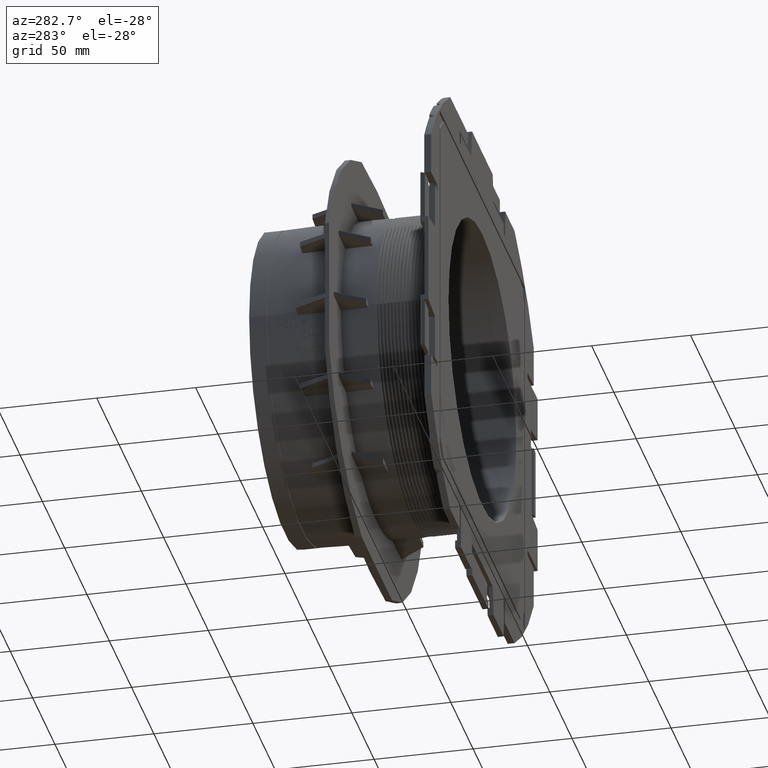
[diagram: clean part render]
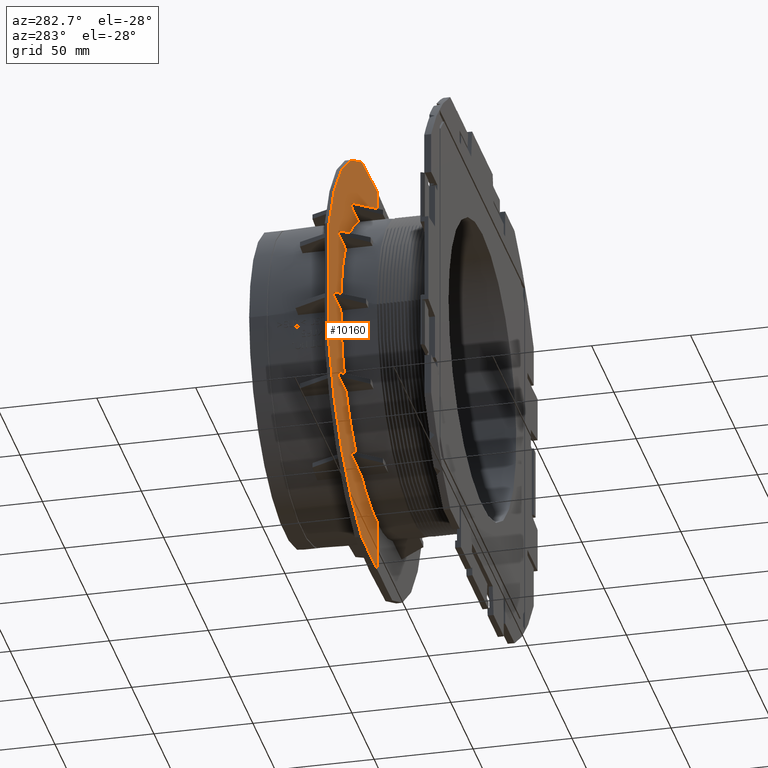
[diagram: same view with one face highlighted and labeled with its STEP entity id]
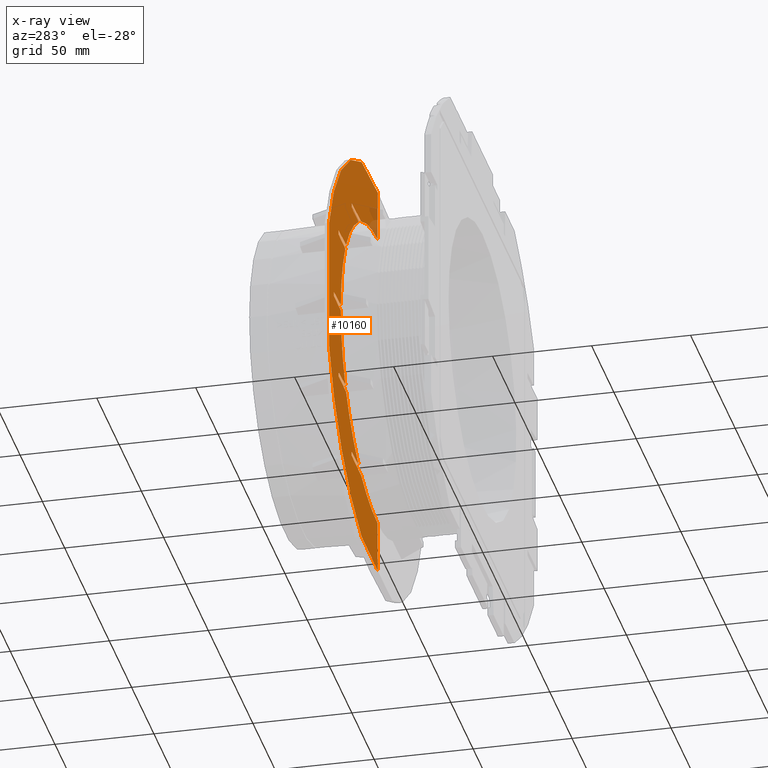
[diagram: x-ray of the same camera — body ghosted, the highlighted face saturated]
A machine part, auxiliary view. The second image highlights one B-rep face of the part: STEP entity #10160.
The next image is the same camera in x-ray: the body ghosted, the highlighted face saturated — about 2% of this face is hidden behind the body in this view.
In plain terms, the highlighted planar face has unit normal (-0.0087, -1, 0).
Its self-contained STEP definition (entity closure, byte-faithful):
#415=ELLIPSE('',#10895,110.004188622431,110.);
#416=ELLIPSE('',#10896,110.004188622431,110.);
#417=ELLIPSE('',#10897,79.1530139042311,79.15);
#418=ELLIPSE('',#10898,79.1530139042311,79.15);
#419=ELLIPSE('',#10899,79.1530139042311,79.15);
#420=ELLIPSE('',#10900,79.1530139042311,79.15);
#421=ELLIPSE('',#10901,79.1530139042311,79.15);
#422=ELLIPSE('',#10902,79.1530139042311,79.15);
#730=FACE_OUTER_BOUND('',#1290,.T.);
#1290=EDGE_LOOP('',(#6786,#6787,#6788,#6789,#6790,#6791,#6792,#6793,#6794,
#6795,#6796,#6797,#6798,#6799,#6800,#6801,#6802,#6803,#6804,#6805,#6806,
#6807,#6808,#6809,#6810,#6811,#6812,#6813));
#1982=LINE('',#16957,#2977);
#1986=LINE('',#16969,#2981);
#1999=LINE('',#17001,#2994);
#2003=LINE('',#17013,#2998);
#2008=LINE('',#17022,#3003);
#2009=LINE('',#17028,#3004);
#2010=LINE('',#17031,#3005);
#2011=LINE('',#17035,#3006);
#2012=LINE('',#17037,#3007);
#2013=LINE('',#17039,#3008);
#2014=LINE('',#17043,#3009);
#2015=LINE('',#17045,#3010);
#2016=LINE('',#17047,#3011);
#2017=LINE('',#17051,#3012);
#2018=LINE('',#17053,#3013);
#2019=LINE('',#17055,#3014);
#2020=LINE('',#17058,#3015);
#2021=LINE('',#17061,#3016);
#2022=LINE('',#17063,#3017);
#2023=LINE('',#17065,#3018);
#2977=VECTOR('',#12006,10.);
#2981=VECTOR('',#12014,10.);
#2994=VECTOR('',#12037,10.);
#2998=VECTOR('',#12047,10.);
#3003=VECTOR('',#12054,10.);
#3004=VECTOR('',#12059,10.);
#3005=VECTOR('',#12062,10.);
#3006=VECTOR('',#12065,10.);
#3007=VECTOR('',#12066,10.);
#3008=VECTOR('',#12067,10.);
#3009=VECTOR('',#12070,10.);
#3010=VECTOR('',#12071,10.);
#3011=VECTOR('',#12072,10.);
#3012=VECTOR('',#12075,10.);
#3013=VECTOR('',#12076,10.);
#3014=VECTOR('',#12077,10.);
#3015=VECTOR('',#12080,10.);
#3016=VECTOR('',#12083,10.);
#3017=VECTOR('',#12084,10.);
#3018=VECTOR('',#12087,10.);
#4231=VERTEX_POINT('',#16954);
#4232=VERTEX_POINT('',#16956);
#4237=VERTEX_POINT('',#16966);
#4238=VERTEX_POINT('',#16968);
#4250=VERTEX_POINT('',#16995);
#4252=VERTEX_POINT('',#16999);
#4256=VERTEX_POINT('',#17010);
#4257=VERTEX_POINT('',#17012);
#4260=VERTEX_POINT('',#17020);
#4261=VERTEX_POINT('',#17024);
#4262=VERTEX_POINT('',#17025);
#4263=VERTEX_POINT('',#17027);
#4264=VERTEX_POINT('',#17029);
#4265=VERTEX_POINT('',#17032);
#4266=VERTEX_POINT('',#17034);
#4267=VERTEX_POINT('',#17036);
#4268=VERTEX_POINT('',#17038);
#4269=VERTEX_POINT('',#17040);
#4270=VERTEX_POINT('',#17042);
#4271=VERTEX_POINT('',#17044);
#4272=VERTEX_POINT('',#17046);
#4273=VERTEX_POINT('',#17048);
#4274=VERTEX_POINT('',#17050);
#4275=VERTEX_POINT('',#17052);
#4276=VERTEX_POINT('',#17054);
#4277=VERTEX_POINT('',#17056);
#4278=VERTEX_POINT('',#17059);
#4279=VERTEX_POINT('',#17062);
#5226=EDGE_CURVE('',#4231,#4232,#1982,.T.);
#5232=EDGE_CURVE('',#4237,#4238,#1986,.T.);
#5248=EDGE_CURVE('',#4252,#4250,#1999,.T.);
#5253=EDGE_CURVE('',#4257,#4256,#2003,.T.);
#5258=EDGE_CURVE('',#4256,#4260,#2008,.T.);
#5259=EDGE_CURVE('',#4261,#4262,#415,.T.);
#5260=EDGE_CURVE('',#4262,#4263,#2009,.T.);
#5261=EDGE_CURVE('',#4263,#4264,#416,.T.);
#5262=EDGE_CURVE('',#4264,#4232,#2010,.T.);
#5263=EDGE_CURVE('',#4231,#4265,#417,.T.);
#5264=EDGE_CURVE('',#4265,#4266,#2011,.T.);
#5265=EDGE_CURVE('',#4267,#4266,#2012,.T.);
#5266=EDGE_CURVE('',#4267,#4268,#2013,.T.);
#5267=EDGE_CURVE('',#4268,#4269,#418,.T.);
#5268=EDGE_CURVE('',#4269,#4270,#2014,.T.);
#5269=EDGE_CURVE('',#4271,#4270,#2015,.T.);
#5270=EDGE_CURVE('',#4271,#4272,#2016,.T.);
#5271=EDGE_CURVE('',#4272,#4273,#419,.T.);
#5272=EDGE_CURVE('',#4273,#4274,#2017,.T.);
#5273=EDGE_CURVE('',#4275,#4274,#2018,.T.);
#5274=EDGE_CURVE('',#4275,#4276,#2019,.T.);
#5275=EDGE_CURVE('',#4276,#4277,#420,.T.);
#5276=EDGE_CURVE('',#4277,#4257,#2020,.T.);
#5277=EDGE_CURVE('',#4260,#4278,#421,.T.);
#5278=EDGE_CURVE('',#4278,#4250,#2021,.T.);
#5279=EDGE_CURVE('',#4252,#4279,#2022,.T.);
#5280=EDGE_CURVE('',#4279,#4238,#422,.T.);
#5281=EDGE_CURVE('',#4237,#4261,#2023,.T.);
#6786=ORIENTED_EDGE('',*,*,#5259,.T.);
#6787=ORIENTED_EDGE('',*,*,#5260,.T.);
#6788=ORIENTED_EDGE('',*,*,#5261,.T.);
#6789=ORIENTED_EDGE('',*,*,#5262,.T.);
#6790=ORIENTED_EDGE('',*,*,#5226,.F.);
#6791=ORIENTED_EDGE('',*,*,#5263,.T.);
#6792=ORIENTED_EDGE('',*,*,#5264,.T.);
#6793=ORIENTED_EDGE('',*,*,#5265,.F.);
#6794=ORIENTED_EDGE('',*,*,#5266,.T.);
#6795=ORIENTED_EDGE('',*,*,#5267,.T.);
#6796=ORIENTED_EDGE('',*,*,#5268,.T.);
#6797=ORIENTED_EDGE('',*,*,#5269,.F.);
#6798=ORIENTED_EDGE('',*,*,#5270,.T.);
#6799=ORIENTED_EDGE('',*,*,#5271,.T.);
#6800=ORIENTED_EDGE('',*,*,#5272,.T.);
#6801=ORIENTED_EDGE('',*,*,#5273,.F.);
#6802=ORIENTED_EDGE('',*,*,#5274,.T.);
#6803=ORIENTED_EDGE('',*,*,#5275,.T.);
#6804=ORIENTED_EDGE('',*,*,#5276,.T.);
#6805=ORIENTED_EDGE('',*,*,#5253,.T.);
#6806=ORIENTED_EDGE('',*,*,#5258,.T.);
#6807=ORIENTED_EDGE('',*,*,#5277,.T.);
#6808=ORIENTED_EDGE('',*,*,#5278,.T.);
#6809=ORIENTED_EDGE('',*,*,#5248,.F.);
#6810=ORIENTED_EDGE('',*,*,#5279,.T.);
#6811=ORIENTED_EDGE('',*,*,#5280,.T.);
#6812=ORIENTED_EDGE('',*,*,#5232,.F.);
#6813=ORIENTED_EDGE('',*,*,#5281,.T.);
#9230=PLANE('',#10894);
#10160=ADVANCED_FACE('',(#730),#9230,.T.);
#10894=AXIS2_PLACEMENT_3D('',#17023,#12055,#12056);
#10895=AXIS2_PLACEMENT_3D('',#17026,#12057,#12058);
#10896=AXIS2_PLACEMENT_3D('',#17030,#12060,#12061);
#10897=AXIS2_PLACEMENT_3D('',#17033,#12063,#12064);
#10898=AXIS2_PLACEMENT_3D('',#17041,#12068,#12069);
#10899=AXIS2_PLACEMENT_3D('',#17049,#12073,#12074);
#10900=AXIS2_PLACEMENT_3D('',#17057,#12078,#12079);
#10901=AXIS2_PLACEMENT_3D('',#17060,#12081,#12082);
#10902=AXIS2_PLACEMENT_3D('',#17064,#12085,#12086);
#12006=DIRECTION('',(0.,0.,-1.));
#12014=DIRECTION('',(0.,0.,-1.));
#12037=DIRECTION('',(0.,0.,-1.));
#12047=DIRECTION('',(0.,0.,1.));
#12054=DIRECTION('',(0.999619287168872,-0.00872354536021529,0.0261759522528506));
#12055=DIRECTION('center_axis',(-0.00872653549837393,-0.999961923064171,
0.));
#12056=DIRECTION('ref_axis',(0.,0.,-1.));
#12057=DIRECTION('center_axis',(-0.00872653549837393,-0.999961923064171,
0.));
#12058=DIRECTION('ref_axis',(0.999961923064171,-0.00872653549837393,0.));
#12059=DIRECTION('',(0.,0.,-1.));
#12060=DIRECTION('center_axis',(-0.00872653549837393,-0.999961923064171,
0.));
#12061=DIRECTION('ref_axis',(0.999961923064171,-0.00872653549837393,0.));
#12062=DIRECTION('',(0.99953842206173,-0.00872283966111637,-0.0291007713058166));
#12063=DIRECTION('center_axis',(0.00872653549837393,0.999961923064171,0.));
#12064=DIRECTION('ref_axis',(0.999961923064171,-0.00872653549837393,0.));
#12065=DIRECTION('',(-0.999619287168872,0.00872354536021529,0.0261759522528506));
#12066=DIRECTION('',(0.,0.,-1.));
#12067=DIRECTION('',(0.999619287168872,-0.00872354536021529,0.0261759522528506));
#12068=DIRECTION('center_axis',(0.00872653549837393,0.999961923064171,0.));
#12069=DIRECTION('ref_axis',(0.999961923064171,-0.00872653549837393,0.));
#12070=DIRECTION('',(-0.999619287168872,0.00872354536021529,0.0261759522528506));
#12071=DIRECTION('',(0.,0.,-1.));
#12072=DIRECTION('',(0.999619287168872,-0.00872354536021529,0.0261759522528506));
#12073=DIRECTION('center_axis',(0.00872653549837393,0.999961923064171,0.));
#12074=DIRECTION('ref_axis',(0.999961923064171,-0.00872653549837393,0.));
#12075=DIRECTION('',(-0.999619287168872,0.00872354536021529,0.0261759522528506));
#12076=DIRECTION('',(0.,0.,-1.));
#12077=DIRECTION('',(0.999619287168872,-0.00872354536021529,0.0261759522528506));
#12078=DIRECTION('center_axis',(0.00872653549837393,0.999961923064171,0.));
#12079=DIRECTION('ref_axis',(0.999961923064171,-0.00872653549837393,0.));
#12080=DIRECTION('',(-0.999619287168872,0.00872354536021529,0.0261759522528506));
#12081=DIRECTION('center_axis',(0.00872653549837393,0.999961923064171,0.));
#12082=DIRECTION('ref_axis',(0.999961923064171,-0.00872653549837393,0.));
#12083=DIRECTION('',(-0.999619287168872,0.00872354536021529,0.0261759522528506));
#12084=DIRECTION('',(0.999619287168872,-0.00872354536021529,0.0261759522528506));
#12085=DIRECTION('center_axis',(0.00872653549837393,0.999961923064171,0.));
#12086=DIRECTION('ref_axis',(0.999961923064171,-0.00872653549837393,0.));
#12087=DIRECTION('',(-0.99953842206173,0.00872283966111637,-0.0291007713058166));
#16954=CARTESIAN_POINT('',(0.,-35.5,-79.15));
#16956=CARTESIAN_POINT('',(0.,-35.5,-105.5));
#16957=CARTESIAN_POINT('',(0.,-35.5,47.2875));
#16966=CARTESIAN_POINT('',(0.,-35.5,105.5));
#16968=CARTESIAN_POINT('',(0.,-35.5,79.15));
#16969=CARTESIAN_POINT('',(0.,-35.5,47.2875));
#16995=CARTESIAN_POINT('',(-56.0160157248381,-35.0111556366043,68.3240550943258));
#16999=CARTESIAN_POINT('',(-56.0160157248381,-35.0111556366043,70.374722429666));
#17001=CARTESIAN_POINT('',(-56.0160157248381,-35.0111556366043,81.9981781233257));
#17010=CARTESIAN_POINT('',(-84.0372670511977,-34.7666178809475,40.6240492219679));
#17012=CARTESIAN_POINT('',(-84.0372670511978,-34.7666178809475,38.4358290428558));
#17013=CARTESIAN_POINT('',(-84.0372670511977,-34.7666178809475,67.0638034674234));
#17020=CARTESIAN_POINT('',(-67.6713082764991,-34.9094414394433,41.0526069348468));
#17022=CARTESIAN_POINT('',(-34.3157859832315,-35.2005306725884,41.9260520255175));
#17023=CARTESIAN_POINT('Origin',(0.,-35.5,94.575));
#17024=CARTESIAN_POINT('',(-34.3474889911911,-35.2002540046293,104.5));
#17025=CARTESIAN_POINT('',(-104.5,-34.5880423158657,34.3474889911911));
#17026=CARTESIAN_POINT('Origin',(0.,-35.5,0.));
#17027=CARTESIAN_POINT('',(-104.5,-34.5880423158657,-34.3474889911911));
#17028=CARTESIAN_POINT('',(-104.5,-34.5880423158657,30.1137555044044));
#17029=CARTESIAN_POINT('',(-34.3474889911911,-35.2002540046293,-104.5));
#17030=CARTESIAN_POINT('Origin',(0.,-35.5,0.));
#17031=CARTESIAN_POINT('',(-2.92726230517475,-35.4744541688739,-105.414775071158));
#17032=CARTESIAN_POINT('',(-35.1409124545103,-35.1933299029629,-70.9213562466514));
#17033=CARTESIAN_POINT('Origin',(0.,-35.5,0.));
#17034=CARTESIAN_POINT('',(-56.0160157248381,-35.0111556366043,-70.374722429666));
#17035=CARTESIAN_POINT('',(-23.2575043957592,-35.2970348339952,-71.2325342380525));
#17036=CARTESIAN_POINT('',(-56.0160157248381,-35.0111556366043,-68.3240550943258));
#17037=CARTESIAN_POINT('',(-56.0160157248381,-35.0111556366043,12.5768218766743));
#17038=CARTESIAN_POINT('',(-40.6375671714666,-35.1453613239565,-67.9213562466514));
#17039=CARTESIAN_POINT('',(-18.9692027258428,-35.3344582757155,-67.3539501547458));
#17040=CARTESIAN_POINT('',(-67.6713082764991,-34.9094414394433,-41.0526069348467));
#17041=CARTESIAN_POINT('Origin',(0.,-35.5,0.));
#17042=CARTESIAN_POINT('',(-84.0372670511977,-34.7666178809475,-40.6240492219679));
#17043=CARTESIAN_POINT('',(-36.7904341784067,-35.1789347449604,-41.8612510819673));
#17044=CARTESIAN_POINT('',(-84.0372670511977,-34.7666178809475,-38.4358290428558));
#17045=CARTESIAN_POINT('',(-84.0372670511977,-34.7666178809475,27.5111965325766));
#17046=CARTESIAN_POINT('',(-69.4026051777745,-34.8943326402793,-38.0526069348467));
#17047=CARTESIAN_POINT('',(-33.2817427339074,-35.2095546313152,-37.1067488638803));
#17048=CARTESIAN_POINT('',(-79.1357852049248,-34.8093924649987,-1.5));
#17049=CARTESIAN_POINT('Origin',(0.,-35.5,0.));
#17050=CARTESIAN_POINT('',(-94.2077105881382,-34.6778617648273,-1.10532774401854));
#17051=CARTESIAN_POINT('',(-41.3264642037688,-35.1393494106342,-2.49007191432049));
#17052=CARTESIAN_POINT('',(-94.2077105881382,-34.6778617648273,1.10532774401853));
#17053=CARTESIAN_POINT('',(-94.2077105881382,-34.6778617648273,47.2875));
#17054=CARTESIAN_POINT('',(-79.1357852049248,-34.8093924649987,1.5));
#17055=CARTESIAN_POINT('',(-38.8518160085936,-35.1609453382621,2.55487285787066));
#17056=CARTESIAN_POINT('',(-69.4026051777745,-34.8943326402793,38.0526069348467));
#17057=CARTESIAN_POINT('Origin',(0.,-35.5,0.));
#17058=CARTESIAN_POINT('',(-35.7563909290827,-35.1879587036872,37.1715498074304));
#17059=CARTESIAN_POINT('',(-40.6375671714666,-35.1453613239565,67.9213562466515));
#17060=CARTESIAN_POINT('Origin',(0.,-35.5,0.));
#17061=CARTESIAN_POINT('',(-21.443850921018,-35.3128623480875,67.418751098296));
#17062=CARTESIAN_POINT('',(-35.1409124545102,-35.1933299029629,70.9213562466515));
#17063=CARTESIAN_POINT('',(-20.782856200584,-35.3186307616232,71.2973351816027));
#17064=CARTESIAN_POINT('Origin',(0.,-35.5,0.));
#17065=CARTESIAN_POINT('',(-0.176327216242718,-35.4984612156959,105.494866372436));